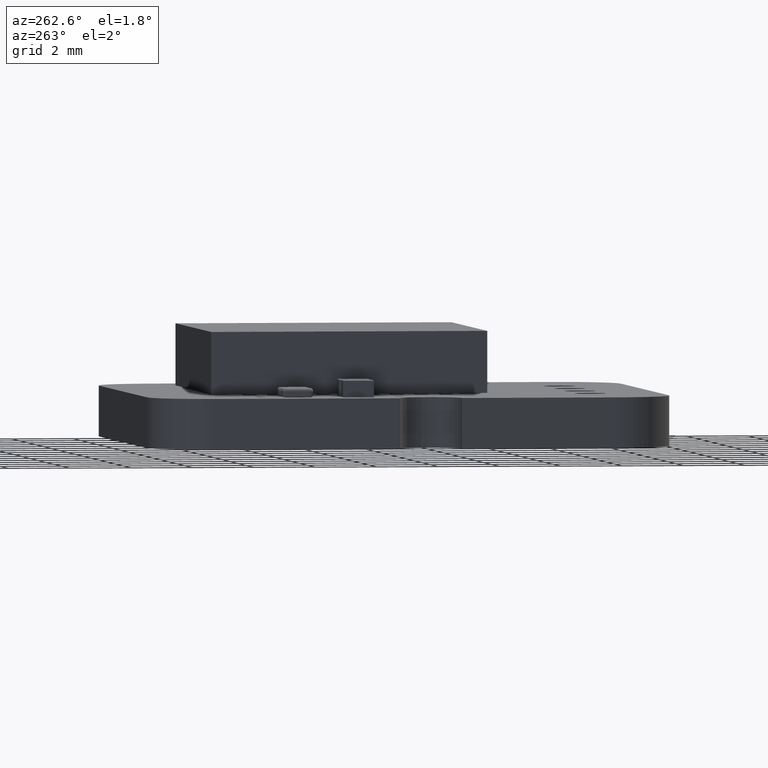
[diagram: clean part render]
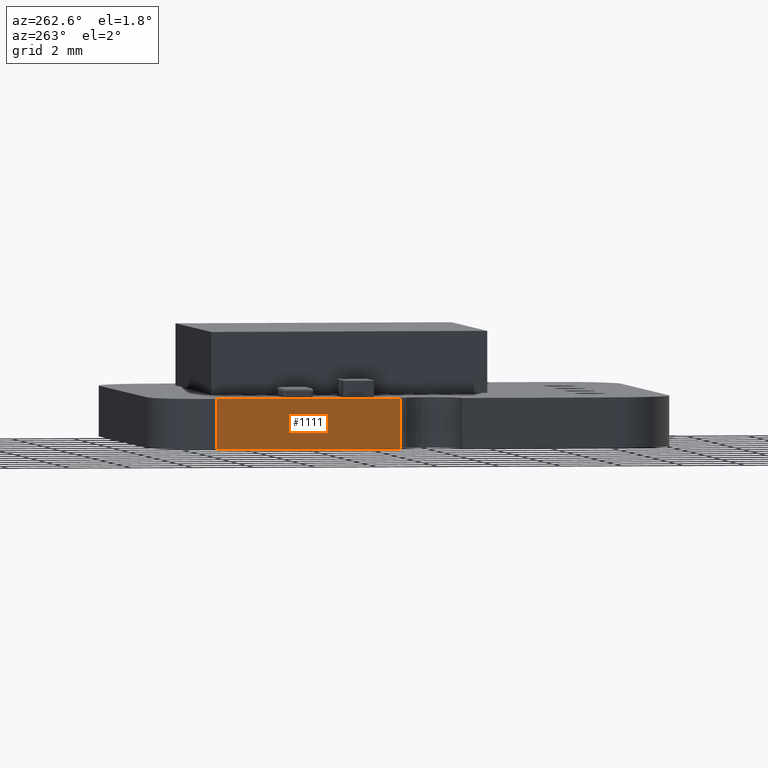
[diagram: same view with one face highlighted and labeled with its STEP entity id]
A machine part, auxiliary view. The second image highlights one B-rep face of the part: STEP entity #1111.
In plain terms, the highlighted planar face has unit normal (1, 0, 0).
Its self-contained STEP definition (entity closure, byte-faithful):
#1055 = VERTEX_POINT('',#1056);
#1056 = CARTESIAN_POINT('',(0.889,-3.669,0.82));
#1062 = EDGE_CURVE('',#1063,#1055,#1065,.T.);
#1063 = VERTEX_POINT('',#1064);
#1064 = CARTESIAN_POINT('',(0.889,-3.669,-0.82));
#1065 = LINE('',#1066,#1067);
#1066 = CARTESIAN_POINT('',(0.889,-3.669,-0.82));
#1067 = VECTOR('',#1068,1.);
#1068 = DIRECTION('',(0.E+000,0.E+000,1.));
#1111 = ADVANCED_FACE('',(#1112),#1137,.F.);
#1112 = FACE_BOUND('',#1113,.F.);
#1113 = EDGE_LOOP('',(#1114,#1115,#1123,#1131));
#1114 = ORIENTED_EDGE('',*,*,#1062,.T.);
#1115 = ORIENTED_EDGE('',*,*,#1116,.T.);
#1116 = EDGE_CURVE('',#1055,#1117,#1119,.T.);
#1117 = VERTEX_POINT('',#1118);
#1118 = CARTESIAN_POINT('',(0.889,-9.669,0.82));
#1119 = LINE('',#1120,#1121);
#1120 = CARTESIAN_POINT('',(0.889,-3.669,0.82));
#1121 = VECTOR('',#1122,1.);
#1122 = DIRECTION('',(0.E+000,-1.,0.E+000));
#1123 = ORIENTED_EDGE('',*,*,#1124,.F.);
#1124 = EDGE_CURVE('',#1125,#1117,#1127,.T.);
#1125 = VERTEX_POINT('',#1126);
#1126 = CARTESIAN_POINT('',(0.889,-9.669,-0.82));
#1127 = LINE('',#1128,#1129);
#1128 = CARTESIAN_POINT('',(0.889,-9.669,-0.82));
#1129 = VECTOR('',#1130,1.);
#1130 = DIRECTION('',(0.E+000,0.E+000,1.));
#1131 = ORIENTED_EDGE('',*,*,#1132,.F.);
#1132 = EDGE_CURVE('',#1063,#1125,#1133,.T.);
#1133 = LINE('',#1134,#1135);
#1134 = CARTESIAN_POINT('',(0.889,-3.669,-0.82));
#1135 = VECTOR('',#1136,1.);
#1136 = DIRECTION('',(0.E+000,-1.,0.E+000));
#1137 = PLANE('',#1138);
#1138 = AXIS2_PLACEMENT_3D('',#1139,#1140,#1141);
#1139 = CARTESIAN_POINT('',(0.889,-3.669,-0.82));
#1140 = DIRECTION('',(1.,0.E+000,-0.E+000));
#1141 = DIRECTION('',(0.E+000,-1.,0.E+000));